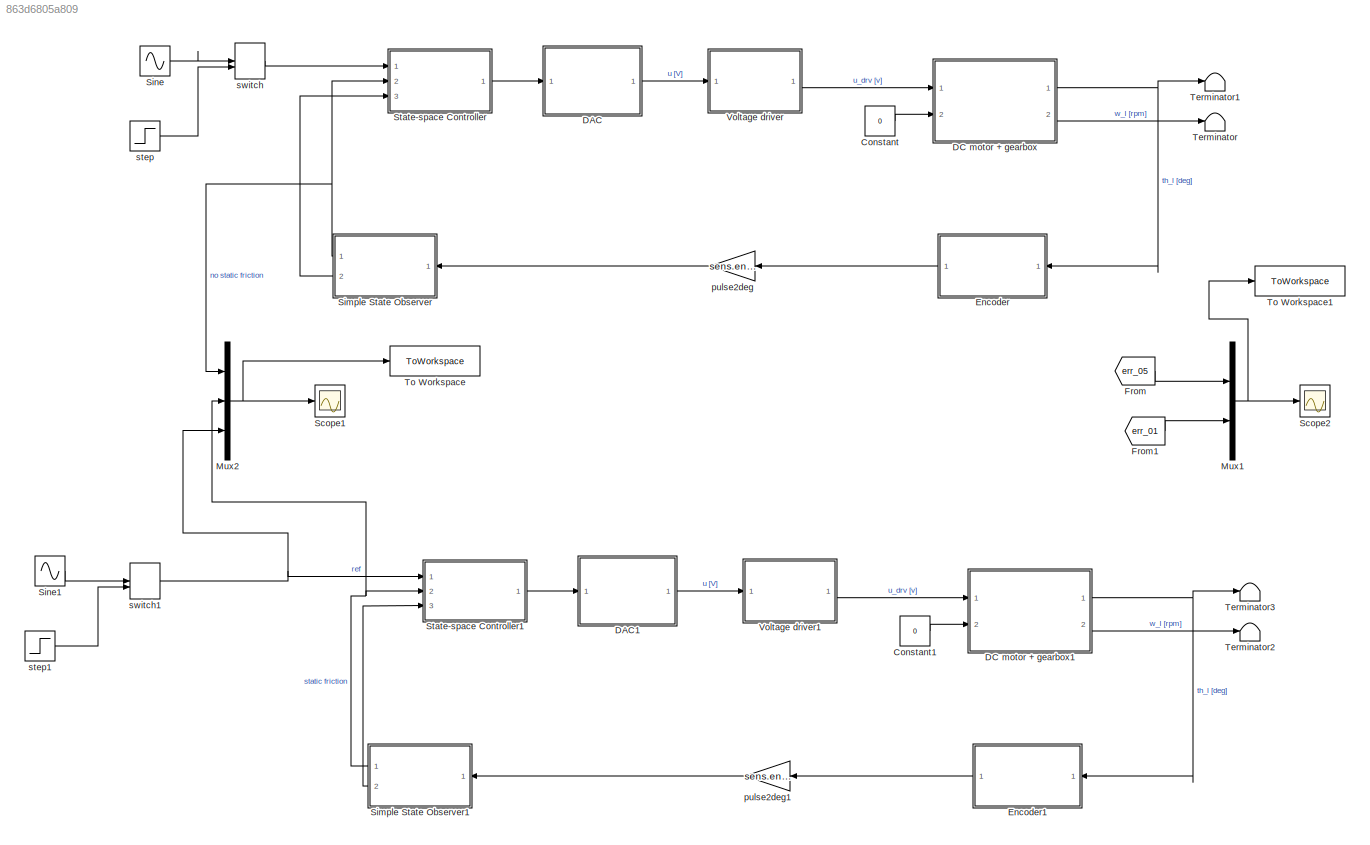
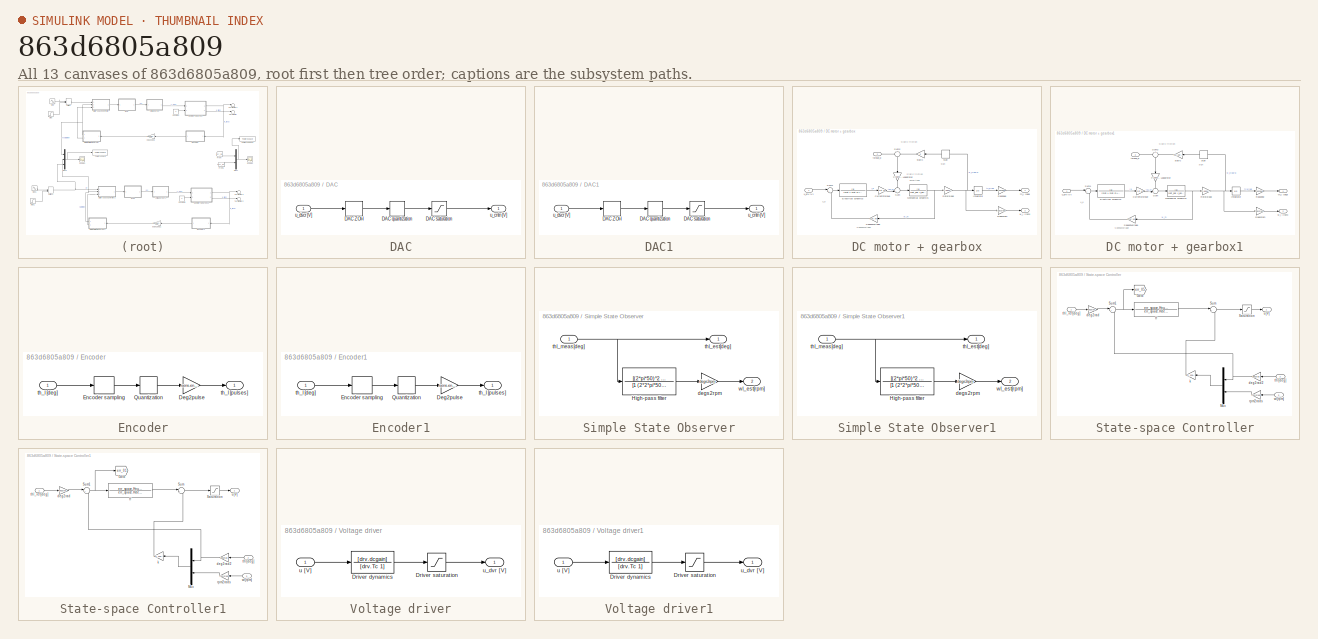
[diagram: thumbnail index - all 13 canvases of the model, root first then tree order]
MODEL slx_863d6805a809
KIND model
CONFIG AbsTol = auto
CONFIG EnableMultiTasking = off
CONFIG FixedStep = 0.0001
CONFIG MaxStep = auto
CONFIG MinStep = auto
CONFIG RelTol = 1e-3
CONFIG SampleTimeConstraint = Unconstrained
CONFIG SolverName = ode45
CONFIG StartTime = 0.0
CONFIG StopTime = 1
BLOCK [Constant] Constant
  Value = 0
BLOCK [Constant] Constant1
  Value = 0
BLOCK [SubSystem] DAC
  Ports = [1, 1]
  RequestExecContextInheritance = off
BLOCK [ZeroOrderHold] DAC/DAC ZOH
  SampleTime = sens.enc.T_s
BLOCK [Quantizer] DAC/DAC quantization
  QuantizationInterval = daq.dac.q
BLOCK [Saturate] DAC/DAC saturation
  LowerLimit = -10
  UpperLimit = 10
BLOCK [Outport] DAC/u_cntn [V]
BLOCK [Inport] DAC/u_dscr [V]
BLOCK [SubSystem] DAC1
  Ports = [1, 1]
  RequestExecContextInheritance = off
BLOCK [ZeroOrderHold] DAC1/DAC ZOH
  SampleTime = sens.enc.T_s
BLOCK [Quantizer] DAC1/DAC quantization
  QuantizationInterval = daq.dac.q
BLOCK [Saturate] DAC1/DAC saturation
  LowerLimit = -10
  UpperLimit = 10
BLOCK [Outport] DAC1/u_cntn [V]
BLOCK [Inport] DAC1/u_dscr [V]
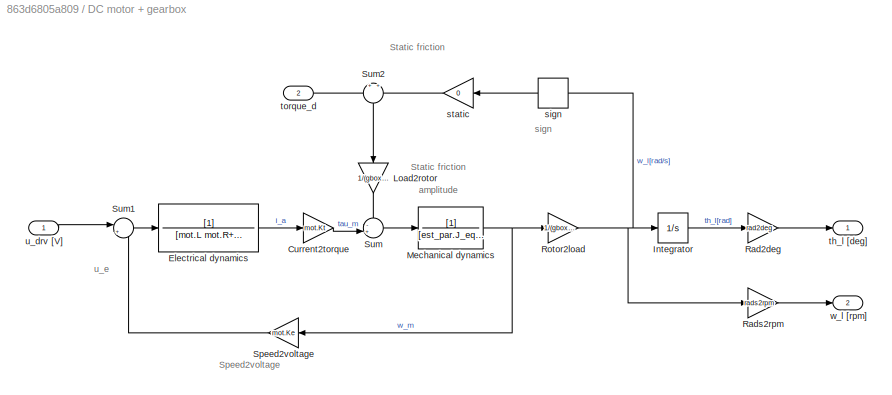
BLOCK [SubSystem] DC motor + gearbox
  Ports = [2, 2]
  RequestExecContextInheritance = off
BLOCK [Gain] DC motor + gearbox/Current2torque
  Gain = mot.Kt
BLOCK [TransferFcn] DC motor + gearbox/Electrical dynamics
  Denominator = [mot.L mot.R+sens.curr.Rs]
BLOCK [Integrator] DC motor + gearbox/Integrator
  Ports = [1, 1]
BLOCK [Gain] DC motor + gearbox/Load2rotor
  Gain = 1/(gbox.N)
  NameLocation = left
BLOCK [TransferFcn] DC motor + gearbox/Mechanical dynamics
  Denominator = [est_par.J_eq est_par.B_eq]
BLOCK [Gain] DC motor + gearbox/Rad2deg
  Gain = rad2deg
BLOCK [Gain] DC motor + gearbox/Rads2rpm
  Gain = rads2rpm
BLOCK [Gain] DC motor + gearbox/Rotor2load
  Gain = 1/(gbox.N)
BLOCK [Gain] DC motor + gearbox/Speed2voltage
  Gain = mot.Ke
  NameLocation = top
BLOCK [Sum] DC motor + gearbox/Sum
  Inputs = -+|
  Ports = [2, 1]
BLOCK [Sum] DC motor + gearbox/Sum1
  Inputs = |+-
  Ports = [2, 1]
BLOCK [Sum] DC motor + gearbox/Sum2
  Inputs = +|+
  NameLocation = left
  Ports = [2, 1]
BLOCK [Signum] DC motor + gearbox/sign
  NameLocation = top
  ZeroCross = off
BLOCK [Gain] DC motor + gearbox/static
  Gain = 0
  NameLocation = top
BLOCK [Outport] DC motor + gearbox/th_l [deg]
BLOCK [Inport] DC motor + gearbox/torque_d
  Port = 2
BLOCK [Inport] DC motor + gearbox/u_drv [V]
BLOCK [Outport] DC motor + gearbox/w_l [rpm]
  Port = 2
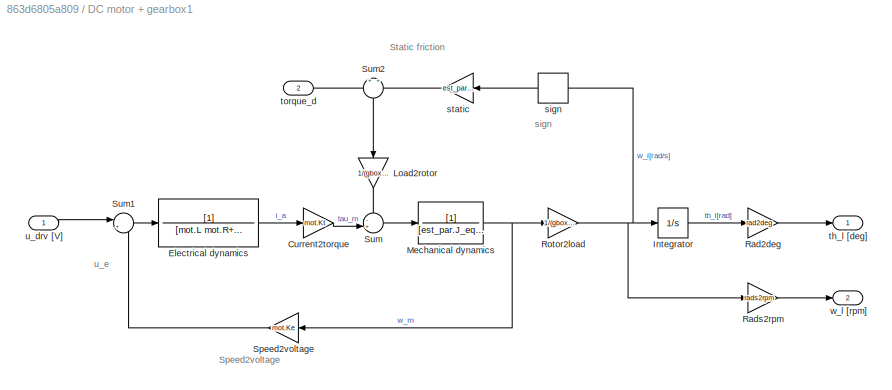
BLOCK [SubSystem] DC motor + gearbox1
  Ports = [2, 2]
  RequestExecContextInheritance = off
BLOCK [Gain] DC motor + gearbox1/Current2torque
  Gain = mot.Kt
BLOCK [TransferFcn] DC motor + gearbox1/Electrical dynamics
  Denominator = [mot.L mot.R+sens.curr.Rs]
BLOCK [Integrator] DC motor + gearbox1/Integrator
  Ports = [1, 1]
BLOCK [Gain] DC motor + gearbox1/Load2rotor
  Gain = 1/(gbox.N)
  NameLocation = left
BLOCK [TransferFcn] DC motor + gearbox1/Mechanical dynamics
  Denominator = [est_par.J_eq est_par.B_eq]
BLOCK [Gain] DC motor + gearbox1/Rad2deg
  Gain = rad2deg
BLOCK [Gain] DC motor + gearbox1/Rads2rpm
  Gain = rads2rpm
BLOCK [Gain] DC motor + gearbox1/Rotor2load
  Gain = 1/(gbox.N)
BLOCK [Gain] DC motor + gearbox1/Speed2voltage
  Gain = mot.Ke
  NameLocation = top
BLOCK [Sum] DC motor + gearbox1/Sum
  Inputs = -+|
  Ports = [2, 1]
BLOCK [Sum] DC motor + gearbox1/Sum1
  Inputs = |+-
  Ports = [2, 1]
BLOCK [Sum] DC motor + gearbox1/Sum2
  Inputs = +|+
  NameLocation = left
  Ports = [2, 1]
BLOCK [Signum] DC motor + gearbox1/sign
  NameLocation = top
  ZeroCross = off
BLOCK [Gain] DC motor + gearbox1/static
  Gain = est_par.tau_sf
  NameLocation = top
BLOCK [Outport] DC motor + gearbox1/th_l [deg]
BLOCK [Inport] DC motor + gearbox1/torque_d
  Port = 2
BLOCK [Inport] DC motor + gearbox1/u_drv [V]
BLOCK [Outport] DC motor + gearbox1/w_l [rpm]
  Port = 2
BLOCK [SubSystem] Encoder
  NameLocation = top
  Ports = [1, 1]
  RequestExecContextInheritance = off
BLOCK [Gain] Encoder/Deg2pulse
  Gain = sens.enc.deg2pulse
BLOCK [ZeroOrderHold] Encoder/Encoder sampling
  SampleTime = 0.001
BLOCK [Quantizer] Encoder/Quantization
  QuantizationInterval = sens.enc.q
BLOCK [Inport] Encoder/th_l [deg]
BLOCK [Outport] Encoder/th_l [pulses]
BLOCK [SubSystem] Encoder1
  NameLocation = top
  Ports = [1, 1]
  RequestExecContextInheritance = off
BLOCK [Gain] Encoder1/Deg2pulse
  Gain = sens.enc.deg2pulse
BLOCK [ZeroOrderHold] Encoder1/Encoder sampling
  SampleTime = 0.001
BLOCK [Quantizer] Encoder1/Quantization
  QuantizationInterval = sens.enc.q
BLOCK [Inport] Encoder1/th_l [deg]
BLOCK [Outport] Encoder1/th_l [pulses]
BLOCK [From] From
  GotoTag = err_05
  TagVisibility = global
BLOCK [From] From1
  GotoTag = err_01
  TagVisibility = global
BLOCK [Mux] Mux1
  DisplayOption = bar
  Inputs = 2
  Ports = [2, 1]
BLOCK [Mux] Mux2
  DisplayOption = bar
  Inputs = 3
  Ports = [3, 1]
BLOCK [Scope] Scope1
  Floating = off
  NumInputPorts = 1
  Ports = [1]
  ScopeSpecificationString = Simulink.scopes.TimeScopeBlockCfg('CurrentConfiguration', extmgr.ConfigurationSet(extmgr.Configuration('Core','General UI',true),extmgr.Configuration('Core','Source UI',true),extmgr.Configuration('Sources','WiredSimulink',true),extmgr.Configuration('Visuals','Time Domain',true,'SerializedDisplays',{struct('MinYLimReal','-16.06201','MaxYLimReal','144.55811','YLabelReal','','MinYLimMag','0.00000','M...<+1483ch>
BLOCK [Scope] Scope2
  Floating = off
  NumInputPorts = 1
  Ports = [1]
  ScopeSpecificationString = Simulink.scopes.TimeScopeBlockCfg('CurrentConfiguration', extmgr.ConfigurationSet(extmgr.Configuration('Core','General UI',true),extmgr.Configuration('Core','Source UI',true),extmgr.Configuration('Sources','WiredSimulink',true,'DataLoggingVariableName','ScopeData1'),extmgr.Configuration('Visuals','Time Domain',true,'SerializedDisplays',{struct('MinYLimReal','-0.42704','MaxYLimReal','0.82315','YLab...<+1564ch>
BLOCK [SubSystem] Simple State Observer
  NameLocation = top
  Ports = [1, 2]
  RequestExecContextInheritance = off
BLOCK [TransferFcn] Simple State Observer/High-pass filter
  Denominator = [1 (2*2*pi*50)/sqrt(2) (2*pi*50)^2]
  Numerator = [(2*pi*50)^2 0]
BLOCK [Gain] Simple State Observer/degs2rpm
  Gain = degs2rpm
BLOCK [Outport] Simple State Observer/thl_est[deg]
BLOCK [Inport] Simple State Observer/thl_meas[deg]
BLOCK [Outport] Simple State Observer/wl_est[rpm]
  Port = 2
BLOCK [SubSystem] Simple State Observer1
  NameLocation = top
  Ports = [1, 2]
  RequestExecContextInheritance = off
BLOCK [TransferFcn] Simple State Observer1/High-pass filter
  Denominator = [1 (2*2*pi*50)/sqrt(2) (2*pi*50)^2]
  Numerator = [(2*pi*50)^2 0]
BLOCK [Gain] Simple State Observer1/degs2rpm
  Gain = degs2rpm
BLOCK [Outport] Simple State Observer1/thl_est[deg]
BLOCK [Inport] Simple State Observer1/thl_meas[deg]
BLOCK [Outport] Simple State Observer1/wl_est[rpm]
  Port = 2
BLOCK [Sin] Sine
  Amplitude = 30
  Frequency = err_space.w3
  Ports = [0, 1]
  SampleTime = 0
BLOCK [Sin] Sine1
  Amplitude = 40
  Frequency = 2*pi/0.1
  Ports = [0, 1]
  SampleTime = 0
BLOCK [SubSystem] State-space Controller
  Ports = [3, 1]
  RequestExecContextInheritance = off
BLOCK [Goto] State-space Controller/Goto
  GotoTag = err_05
  TagVisibility = global
BLOCK [Mux] State-space Controller/Mux
  DisplayOption = bar
  Inputs = 2
  NameLocation = top
  Ports = [2, 1]
BLOCK [Saturate] State-space Controller/Saturation
  LowerLimit = -10
  UpperLimit = 10
BLOCK [Sum] State-space Controller/Sum
  Inputs = |+-
  Ports = [2, 1]
BLOCK [Sum] State-space Controller/Sum1
  Inputs = |+-
  Ports = [2, 1]
BLOCK [Gain] State-space Controller/deg2rad
  Gain = deg2rad
BLOCK [Gain] State-space Controller/deg2rad2
  Gain = deg2rad
  NameLocation = top
BLOCK [Gain] State-space Controller/k
  Gain = err_space.Kpsi_3
  Multiplication = Matrix(K*u)
  NameLocation = top
BLOCK [Gain] State-space Controller/rpm2rads
  Gain = rpm2rads
  NameLocation = top
BLOCK [TransferFcn] State-space Controller/tf
  Denominator = err_space.Hden_3
  Numerator = err_space.Hnum_3
BLOCK [Inport] State-space Controller/thl[deg]
  NameLocation = top
  Port = 2
BLOCK [Inport] State-space Controller/thl_ref[deg]
BLOCK [Outport] State-space Controller/u[V]
BLOCK [Inport] State-space Controller/wl[rpm]
  NameLocation = top
  Port = 3
BLOCK [SubSystem] State-space Controller1
  Ports = [3, 1]
  RequestExecContextInheritance = off
BLOCK [Goto] State-space Controller1/Goto
  GotoTag = err_01
  TagVisibility = global
BLOCK [Mux] State-space Controller1/Mux
  DisplayOption = bar
  Inputs = 2
  NameLocation = top
  Ports = [2, 1]
BLOCK [Saturate] State-space Controller1/Saturation
  LowerLimit = -10
  UpperLimit = 10
BLOCK [Sum] State-space Controller1/Sum
  Inputs = |+-
  Ports = [2, 1]
BLOCK [Sum] State-space Controller1/Sum1
  Inputs = |+-
  Ports = [2, 1]
BLOCK [Gain] State-space Controller1/deg2rad
  Gain = deg2rad
BLOCK [Gain] State-space Controller1/deg2rad2
  Gain = deg2rad
  NameLocation = top
BLOCK [Gain] State-space Controller1/k
  Gain = err_space.Kpsi_3
  Multiplication = Matrix(K*u)
  NameLocation = top
BLOCK [Gain] State-space Controller1/rpm2rads
  Gain = rpm2rads
  NameLocation = top
BLOCK [TransferFcn] State-space Controller1/tf
  Denominator = err_space.Hden_3
  Numerator = err_space.Hnum_3
BLOCK [Inport] State-space Controller1/thl[deg]
  NameLocation = top
  Port = 2
BLOCK [Inport] State-space Controller1/thl_ref[deg]
BLOCK [Outport] State-space Controller1/u[V]
BLOCK [Inport] State-space Controller1/wl[rpm]
  NameLocation = top
  Port = 3
BLOCK [Terminator] Terminator
BLOCK [Terminator] Terminator1
BLOCK [Terminator] Terminator2
BLOCK [Terminator] Terminator3
BLOCK [ToWorkspace] To Workspace
  FixptAsFi = on
  MaxDataPoints = inf
  Ports = [1]
  SampleTime = -1
  SaveFormat = Structure With Time
  VariableName = simres
BLOCK [ToWorkspace] To Workspace1
  FixptAsFi = on
  MaxDataPoints = inf
  Ports = [1]
  SampleTime = -1
  SaveFormat = Structure With Time
  VariableName = err
BLOCK [SubSystem] Voltage driver
  Ports = [1, 1]
  RequestExecContextInheritance = off
BLOCK [TransferFcn] Voltage driver/Driver dynamics
  Denominator = [drv.Tc 1]
  Numerator = [drv.dcgain]
BLOCK [Saturate] Voltage driver/Driver saturation
  LowerLimit = -12
  UpperLimit = 12
BLOCK [Inport] Voltage driver/u [V]
BLOCK [Outport] Voltage driver/u_dvr [V]
BLOCK [SubSystem] Voltage driver1
  Ports = [1, 1]
  RequestExecContextInheritance = off
BLOCK [TransferFcn] Voltage driver1/Driver dynamics
  Denominator = [drv.Tc 1]
  Numerator = [drv.dcgain]
BLOCK [Saturate] Voltage driver1/Driver saturation
  LowerLimit = -12
  UpperLimit = 12
BLOCK [Inport] Voltage driver1/u [V]
BLOCK [Outport] Voltage driver1/u_dvr [V]
BLOCK [Gain] pulse2deg
  Gain = sens.enc.pulse2deg
  NameLocation = top
BLOCK [Gain] pulse2deg1
  Gain = sens.enc.pulse2deg
  NameLocation = top
BLOCK [Step] step
  After = 40
  SampleTime = 0
  Time = 0
BLOCK [Step] step1
  After = 40
  SampleTime = 0
  Time = 0
BLOCK [ManualSwitch] switch
  CurrentSetting = 0
BLOCK [ManualSwitch] switch1
  CurrentSetting = 0
ANNOTATION DC motor + gearbox: Static friction
ANNOTATION DC motor + gearbox: Speed2voltage
ANNOTATION DC motor + gearbox: Static friction amplitude
ANNOTATION DC motor + gearbox: sign
ANNOTATION DC motor + gearbox: u_e
ANNOTATION DC motor + gearbox1: Static friction
ANNOTATION DC motor + gearbox1: Speed2voltage
ANNOTATION DC motor + gearbox1: sign
ANNOTATION DC motor + gearbox1: u_e
LINE Constant1:1 -> DC motor + gearbox1:2
LINE Constant:1 -> DC motor + gearbox:2
LINE DAC/DAC ZOH:1 -> DAC/DAC quantization:1
LINE DAC/DAC quantization:1 -> DAC/DAC saturation:1
LINE DAC/DAC saturation:1 -> DAC/u_cntn [V]:1
LINE DAC/u_dscr [V]:1 -> DAC/DAC ZOH:1
LINE DAC1/DAC ZOH:1 -> DAC1/DAC quantization:1
LINE DAC1/DAC quantization:1 -> DAC1/DAC saturation:1
LINE DAC1/DAC saturation:1 -> DAC1/u_cntn [V]:1
LINE DAC1/u_dscr [V]:1 -> DAC1/DAC ZOH:1
LINE DAC1:1 -> Voltage driver1:1
LINE DAC:1 -> Voltage driver:1
LINE DC motor + gearbox/Current2torque:1 -> DC motor + gearbox/Sum:2
LINE DC motor + gearbox/Electrical dynamics:1 -> DC motor + gearbox/Current2torque:1
LINE DC motor + gearbox/Integrator:1 -> DC motor + gearbox/Rad2deg:1
LINE DC motor + gearbox/Load2rotor:1 -> DC motor + gearbox/Sum:1
NET DC motor + gearbox/Mechanical dynamics:1 -> DC motor + gearbox/Rotor2load:1, DC motor + gearbox/Speed2voltage:1
LINE DC motor + gearbox/Rad2deg:1 -> DC motor + gearbox/th_l [deg]:1
LINE DC motor + gearbox/Rads2rpm:1 -> DC motor + gearbox/w_l [rpm]:1
NET DC motor + gearbox/Rotor2load:1 -> DC motor + gearbox/Integrator:1, DC motor + gearbox/Rads2rpm:1, DC motor + gearbox/sign:1
LINE DC motor + gearbox/Speed2voltage:1 -> DC motor + gearbox/Sum1:2
LINE DC motor + gearbox/Sum1:1 -> DC motor + gearbox/Electrical dynamics:1
LINE DC motor + gearbox/Sum2:1 -> DC motor + gearbox/Load2rotor:1
LINE DC motor + gearbox/Sum:1 -> DC motor + gearbox/Mechanical dynamics:1
LINE DC motor + gearbox/sign:1 -> DC motor + gearbox/static:1
LINE DC motor + gearbox/static:1 -> DC motor + gearbox/Sum2:2
LINE DC motor + gearbox/torque_d:1 -> DC motor + gearbox/Sum2:1
LINE DC motor + gearbox/u_drv [V]:1 -> DC motor + gearbox/Sum1:1
LINE DC motor + gearbox1/Current2torque:1 -> DC motor + gearbox1/Sum:2
LINE DC motor + gearbox1/Electrical dynamics:1 -> DC motor + gearbox1/Current2torque:1
LINE DC motor + gearbox1/Integrator:1 -> DC motor + gearbox1/Rad2deg:1
LINE DC motor + gearbox1/Load2rotor:1 -> DC motor + gearbox1/Sum:1
NET DC motor + gearbox1/Mechanical dynamics:1 -> DC motor + gearbox1/Rotor2load:1, DC motor + gearbox1/Speed2voltage:1
LINE DC motor + gearbox1/Rad2deg:1 -> DC motor + gearbox1/th_l [deg]:1
LINE DC motor + gearbox1/Rads2rpm:1 -> DC motor + gearbox1/w_l [rpm]:1
NET DC motor + gearbox1/Rotor2load:1 -> DC motor + gearbox1/Integrator:1, DC motor + gearbox1/Rads2rpm:1, DC motor + gearbox1/sign:1
LINE DC motor + gearbox1/Speed2voltage:1 -> DC motor + gearbox1/Sum1:2
LINE DC motor + gearbox1/Sum1:1 -> DC motor + gearbox1/Electrical dynamics:1
LINE DC motor + gearbox1/Sum2:1 -> DC motor + gearbox1/Load2rotor:1
LINE DC motor + gearbox1/Sum:1 -> DC motor + gearbox1/Mechanical dynamics:1
LINE DC motor + gearbox1/sign:1 -> DC motor + gearbox1/static:1
LINE DC motor + gearbox1/static:1 -> DC motor + gearbox1/Sum2:2
LINE DC motor + gearbox1/torque_d:1 -> DC motor + gearbox1/Sum2:1
LINE DC motor + gearbox1/u_drv [V]:1 -> DC motor + gearbox1/Sum1:1
NET DC motor + gearbox1:1 -> Encoder1:1, Terminator3:1
LINE DC motor + gearbox1:2 -> Terminator2:1
NET DC motor + gearbox:1 -> Encoder:1, Terminator1:1
LINE DC motor + gearbox:2 -> Terminator:1
LINE Encoder/Deg2pulse:1 -> Encoder/th_l [pulses]:1
LINE Encoder/Encoder sampling:1 -> Encoder/Quantization:1
LINE Encoder/Quantization:1 -> Encoder/Deg2pulse:1
LINE Encoder/th_l [deg]:1 -> Encoder/Encoder sampling:1
LINE Encoder1/Deg2pulse:1 -> Encoder1/th_l [pulses]:1
LINE Encoder1/Encoder sampling:1 -> Encoder1/Quantization:1
LINE Encoder1/Quantization:1 -> Encoder1/Deg2pulse:1
LINE Encoder1/th_l [deg]:1 -> Encoder1/Encoder sampling:1
LINE Encoder1:1 -> pulse2deg1:1
LINE Encoder:1 -> pulse2deg:1
LINE From1:1 -> Mux1:2
LINE From:1 -> Mux1:1
NET Mux1:1 -> Scope2:1, To Workspace1:1
NET Mux2:1 -> Scope1:1, To Workspace:1
LINE Simple State Observer/High-pass filter:1 -> Simple State Observer/degs2rpm:1
LINE Simple State Observer/degs2rpm:1 -> Simple State Observer/wl_est[rpm]:1
NET Simple State Observer/thl_meas[deg]:1 -> Simple State Observer/High-pass filter:1, Simple State Observer/thl_est[deg]:1
LINE Simple State Observer1/High-pass filter:1 -> Simple State Observer1/degs2rpm:1
LINE Simple State Observer1/degs2rpm:1 -> Simple State Observer1/wl_est[rpm]:1
NET Simple State Observer1/thl_meas[deg]:1 -> Simple State Observer1/High-pass filter:1, Simple State Observer1/thl_est[deg]:1
NET Simple State Observer1:1 -> Mux2:2, State-space Controller1:2
LINE Simple State Observer1:2 -> State-space Controller1:3
NET Simple State Observer:1 -> Mux2:1, State-space Controller:2
LINE Simple State Observer:2 -> State-space Controller:3
LINE Sine1:1 -> switch1:1
LINE Sine:1 -> switch:1
LINE State-space Controller/Mux:1 -> State-space Controller/k:1
LINE State-space Controller/Saturation:1 -> State-space Controller/u[V]:1
NET State-space Controller/Sum1:1 -> State-space Controller/Goto:1, State-space Controller/tf:1
LINE State-space Controller/Sum:1 -> State-space Controller/Saturation:1
NET State-space Controller/deg2rad2:1 -> State-space Controller/Mux:1, State-space Controller/Sum1:2
LINE State-space Controller/deg2rad:1 -> State-space Controller/Sum1:1
LINE State-space Controller/k:1 -> State-space Controller/Sum:2
LINE State-space Controller/rpm2rads:1 -> State-space Controller/Mux:2
LINE State-space Controller/tf:1 -> State-space Controller/Sum:1
LINE State-space Controller/thl[deg]:1 -> State-space Controller/deg2rad2:1
LINE State-space Controller/thl_ref[deg]:1 -> State-space Controller/deg2rad:1
LINE State-space Controller/wl[rpm]:1 -> State-space Controller/rpm2rads:1
LINE State-space Controller1/Mux:1 -> State-space Controller1/k:1
LINE State-space Controller1/Saturation:1 -> State-space Controller1/u[V]:1
NET State-space Controller1/Sum1:1 -> State-space Controller1/Goto:1, State-space Controller1/tf:1
LINE State-space Controller1/Sum:1 -> State-space Controller1/Saturation:1
NET State-space Controller1/deg2rad2:1 -> State-space Controller1/Mux:1, State-space Controller1/Sum1:2
LINE State-space Controller1/deg2rad:1 -> State-space Controller1/Sum1:1
LINE State-space Controller1/k:1 -> State-space Controller1/Sum:2
LINE State-space Controller1/rpm2rads:1 -> State-space Controller1/Mux:2
LINE State-space Controller1/tf:1 -> State-space Controller1/Sum:1
LINE State-space Controller1/thl[deg]:1 -> State-space Controller1/deg2rad2:1
LINE State-space Controller1/thl_ref[deg]:1 -> State-space Controller1/deg2rad:1
LINE State-space Controller1/wl[rpm]:1 -> State-space Controller1/rpm2rads:1
LINE State-space Controller1:1 -> DAC1:1
LINE State-space Controller:1 -> DAC:1
LINE Voltage driver/Driver dynamics:1 -> Voltage driver/Driver saturation:1
LINE Voltage driver/Driver saturation:1 -> Voltage driver/u_dvr [V]:1
LINE Voltage driver/u [V]:1 -> Voltage driver/Driver dynamics:1
LINE Voltage driver1/Driver dynamics:1 -> Voltage driver1/Driver saturation:1
LINE Voltage driver1/Driver saturation:1 -> Voltage driver1/u_dvr [V]:1
LINE Voltage driver1/u [V]:1 -> Voltage driver1/Driver dynamics:1
LINE Voltage driver1:1 -> DC motor + gearbox1:1
LINE Voltage driver:1 -> DC motor + gearbox:1
LINE pulse2deg1:1 -> Simple State Observer1:1
LINE pulse2deg:1 -> Simple State Observer:1
LINE step1:1 -> switch1:2
LINE step:1 -> switch:2
NET switch1:1 -> Mux2:3, State-space Controller1:1
LINE switch:1 -> State-space Controller:1
note: NET lines group one-source signal fan-out (src -> all destinations, sorted); 1:1 wires keep LINE
